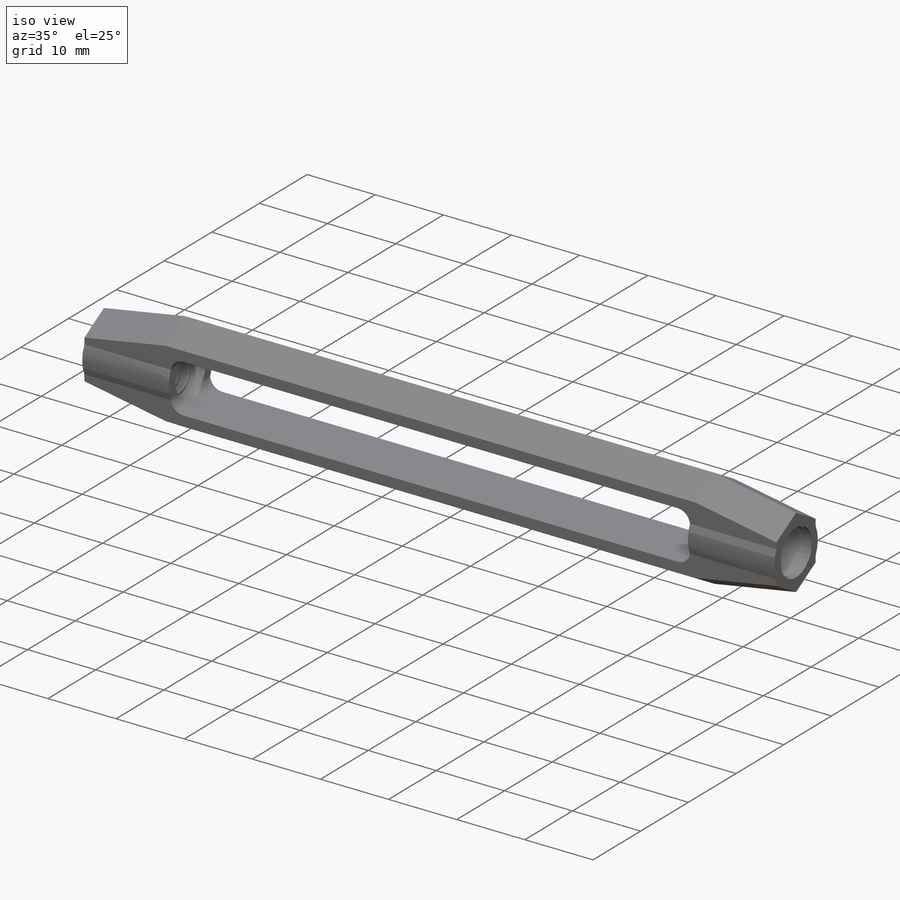
[diagram: iso view]
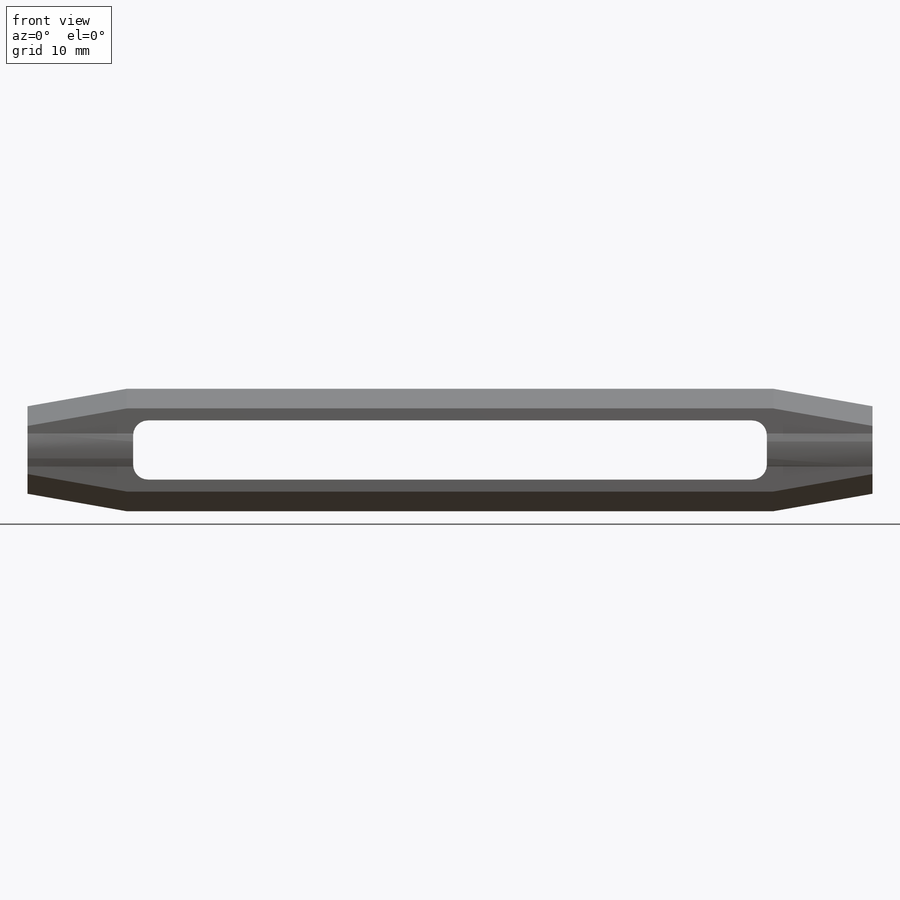
[diagram: front view]
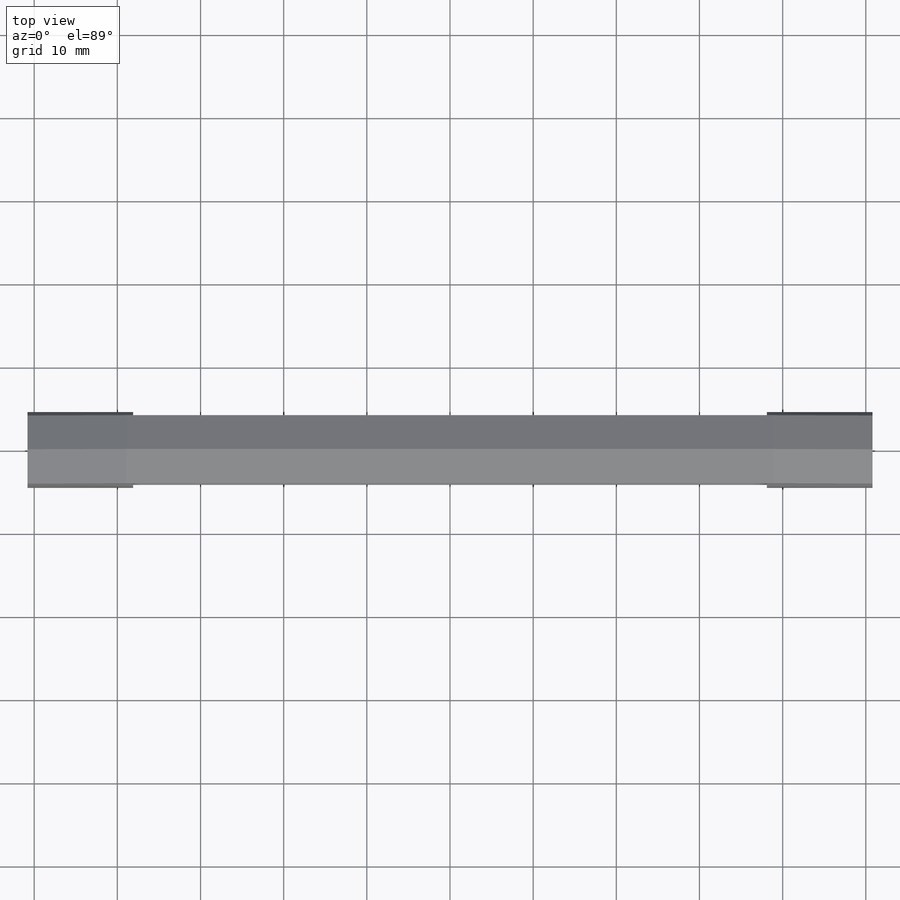
[diagram: top view]
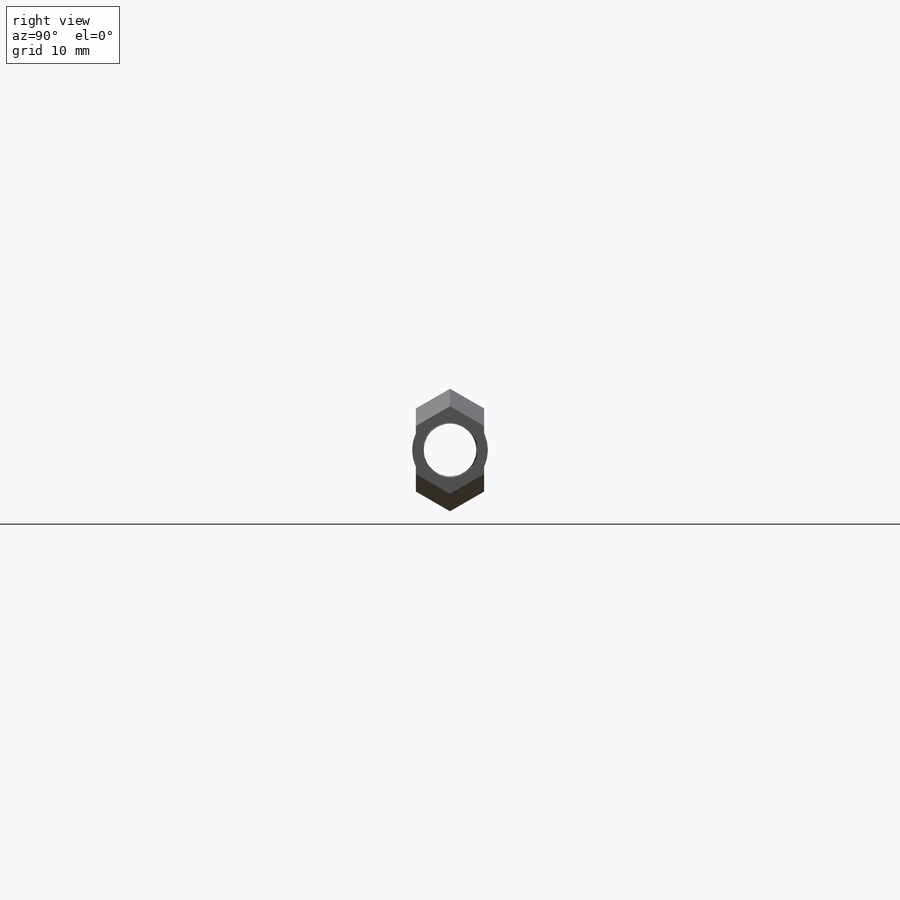
[diagram: right view]
SOLIDWORKS PART (.sldprt)
format: sldprt  version: not decoded by parser v0  size: 489,472 bytes
history: native  units: mm
features: sketch x9, cut_extrude x4, mirror x4, extrude x2, cut_revolve x2, material x1, fillet x1, pattern_linear x1 (+14 scaffold rows collapsed)
feature tree (38):
  scaffold x14  (default folders/planes/origin — collapsed)
  material  "Material <not specified>"
  sketch  "Sketch1"  dims[c1.Body Width=10.414mm c1.D1=~8.719474mm c1.Body Height=14.732mm c1.D2=~17.931878mm c2.D2=120.0deg]
  extrude  "Extrude1"  Depth=101.6mm Body Length=101.6mm
  sketch  "Sketch23"  dims[D2=~9.11225mm D1=~8.201025mm]
  cut_extrude  "Cut-Extrude3"  [1 undecoded]
  mirror  "Mirror2"
  sketch  "Sketch24"
  sketch  "Sketch25"  dims[c1.D1=~30.903967mm c2.D1=10.0deg]
  cut_extrude  "Cut-Extrude4"  Depth=50.8mm
  mirror  "Mirror3"
  mirror  "Mirror4"
  sketch  "Sketch2"  dims[Take-Up=76.2mm Body ID=7.112mm D1=12.7mm]
  cut_extrude  "Cut-Extrude1"  [1 undecoded]
  sketch  "Sketch26"
  extrude  "Extrude2"  Depth=12.7mm
  sketch  "Sketch27"  dims[D1=3.175mm]
  cut_extrude  "Cut-Extrude5"  [1 undecoded]
  fillet  "Fillet1"  Radius=1.778mm
  sketch  "Sketch13"  dims[Thread Dia=6.35mm]
  cut_revolve  "Cut-Revolve7"  Angle=360deg
  sketch  "Sketch22"  dims[c1.D1=~2.419564mm c2.D1=60.0deg c2.Thread Pitch=1.27mm c2.D3=280.9875mm c2.D2=1.27mm c2.D4=~0.15875mm c2.D5=0.3175mm c2.D6=15.875mm c3.D3=~26.968394mm]
  cut_revolve  "Cut-Revolve8"  Angle=360deg
  pattern_linear  "LPattern1"  Count1=10 Count2=1 Spacing1=1.27mm Spacing2=50mm
  mirror  "Mirror1"  hex flats=14.2748mm hex flats/2=7.366mm
decode coverage: 15 of 23 modeling features carry decoded parameters
note: ~ marks probable driven/reference dimensions
note: 3 parameter values undecoded
summary: no parameter record found for 3 features
note: suppression state not decoded; provenance and decode notes live in map.json
